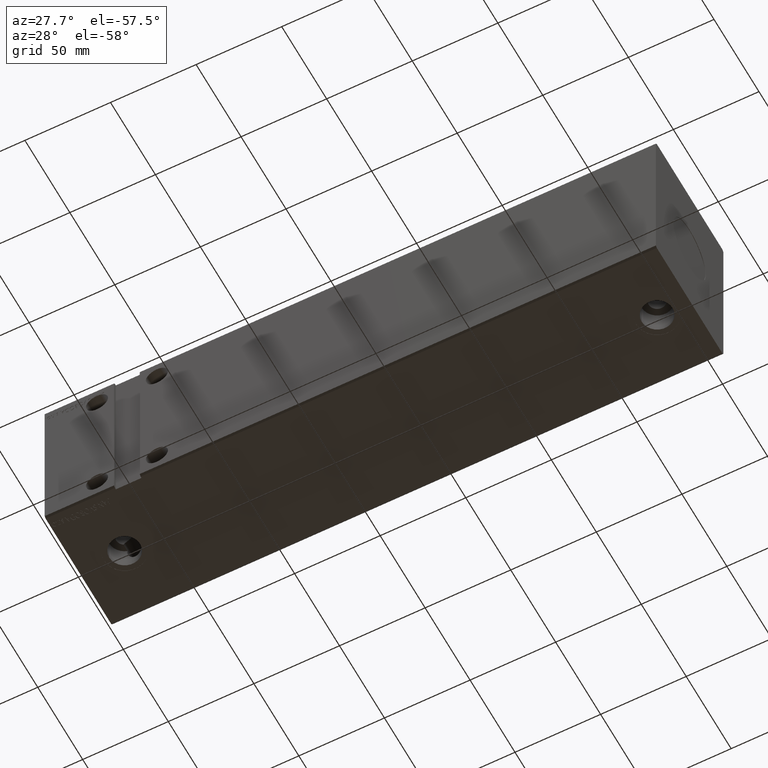
[diagram: clean part render]
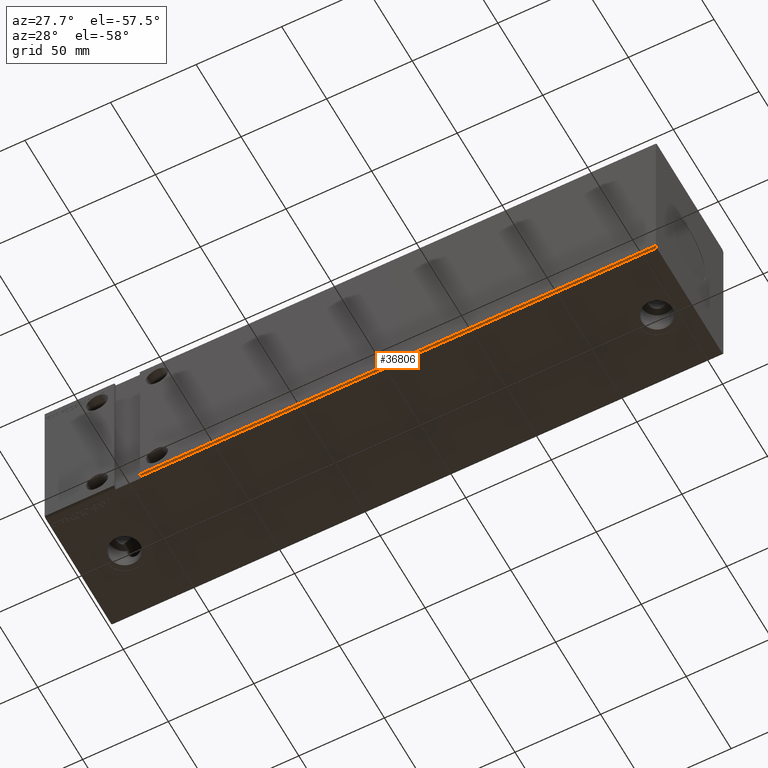
[diagram: same view with one face highlighted and labeled with its STEP entity id]
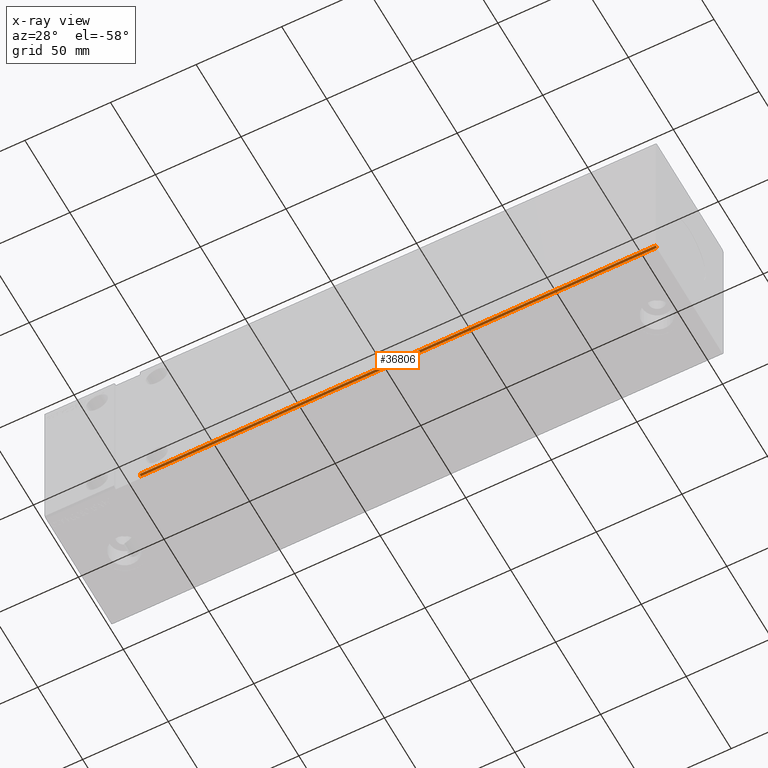
[diagram: x-ray of the same camera — body ghosted, the highlighted face saturated]
A machine part, auxiliary view. The second image highlights one B-rep face of the part: STEP entity #36806.
The next image is the same camera in x-ray: the body ghosted, the highlighted face saturated — about 0% of this face is hidden behind the body in this view.
In plain terms, the highlighted planar face has unit normal (-0, 0.7071, 0.7071).
Its self-contained STEP definition (entity closure, byte-faithful):
#1 = VECTOR ( 'NONE', #8479, 1000.000000000000114 ) ;
#666 = CARTESIAN_POINT ( 'NONE',  ( 357.0000000000000000, -37.50000000000001421, -49.00000000000000000 ) ) ;
#1188 = VECTOR ( 'NONE', #30569, 1000.000000000000000 ) ;
#4880 = VERTEX_POINT ( 'NONE', #36850 ) ;
#5754 = DIRECTION ( 'NONE',  ( 0.000000000000000000, -0.7071067811865500152, 0.7071067811865451302 ) ) ;
#6902 = LINE ( 'NONE', #666, #18612 ) ;
#8479 = DIRECTION ( 'NONE',  ( 0.000000000000000000, 0.7071067811865500152, -0.7071067811865451302 ) ) ;
#9630 = ORIENTED_EDGE ( 'NONE', *, *, #19787, .F. ) ;
#10006 = DIRECTION ( 'NONE',  ( -1.000000000000000000, -0.000000000000000000, -0.000000000000000000 ) ) ;
#11424 = AXIS2_PLACEMENT_3D ( 'NONE', #40775, #15486, #5754 ) ;
#15428 = CARTESIAN_POINT ( 'NONE',  ( 357.0000000000000000, -36.50000000000000711, -50.00000000000000000 ) ) ;
#15486 = DIRECTION ( 'NONE',  ( -0.000000000000000000, 0.7071067811865451302, 0.7071067811865500152 ) ) ;
#16344 = CARTESIAN_POINT ( 'NONE',  ( 357.0000000000000000, -36.50000000000000711, -50.00000000000000000 ) ) ;
#18176 = ORIENTED_EDGE ( 'NONE', *, *, #25213, .F. ) ;
#18612 = VECTOR ( 'NONE', #10006, 1000.000000000000000 ) ;
#19787 = EDGE_CURVE ( 'NONE', #39789, #38327, #20818, .T. ) ;
#20818 = LINE ( 'NONE', #15428, #1188 ) ;
#22495 = LINE ( 'NONE', #35154, #30599 ) ;
#23631 = ORIENTED_EDGE ( 'NONE', *, *, #28587, .T. ) ;
#25213 = EDGE_CURVE ( 'NONE', #4880, #39789, #33566, .T. ) ;
#25380 = EDGE_LOOP ( 'NONE', ( #23631, #39591, #9630, #18176 ) ) ;
#28104 = DIRECTION ( 'NONE',  ( 2.453269466693390239E-16, 0.7071067811865500152, -0.7071067811865451302 ) ) ;
#28244 = CARTESIAN_POINT ( 'NONE',  ( 55.50000000000003553, -36.50000000000000711, -50.00000000000000000 ) ) ;
#28587 = EDGE_CURVE ( 'NONE', #4880, #34564, #6902, .T. ) ;
#30448 = EDGE_CURVE ( 'NONE', #34564, #38327, #22495, .T. ) ;
#30569 = DIRECTION ( 'NONE',  ( -1.000000000000000000, -0.000000000000000000, -0.000000000000000000 ) ) ;
#30599 = VECTOR ( 'NONE', #28104, 1000.000000000000114 ) ;
#32279 = CARTESIAN_POINT ( 'NONE',  ( 55.50000000000003553, -37.50000000000001421, -48.99999999999997158 ) ) ;
#33566 = LINE ( 'NONE', #39369, #1 ) ;
#34144 = PLANE ( 'NONE',  #11424 ) ;
#34564 = VERTEX_POINT ( 'NONE', #32279 ) ;
#35154 = CARTESIAN_POINT ( 'NONE',  ( 55.50000000000004974, -37.49999999999995737, -49.00000000000005684 ) ) ;
#36806 = ADVANCED_FACE ( 'NONE', ( #37251 ), #34144, .F. ) ;
#36850 = CARTESIAN_POINT ( 'NONE',  ( 357.0000000000000000, -37.50000000000001421, -49.00000000000000000 ) ) ;
#37251 = FACE_OUTER_BOUND ( 'NONE', #25380, .T. ) ;
#38327 = VERTEX_POINT ( 'NONE', #28244 ) ;
#39369 = CARTESIAN_POINT ( 'NONE',  ( 357.0000000000000000, -37.50000000000001421, -49.00000000000000000 ) ) ;
#39591 = ORIENTED_EDGE ( 'NONE', *, *, #30448, .T. ) ;
#39789 = VERTEX_POINT ( 'NONE', #16344 ) ;
#40775 = CARTESIAN_POINT ( 'NONE',  ( 357.0000000000000000, -37.50000000000001421, -49.00000000000000000 ) ) ;